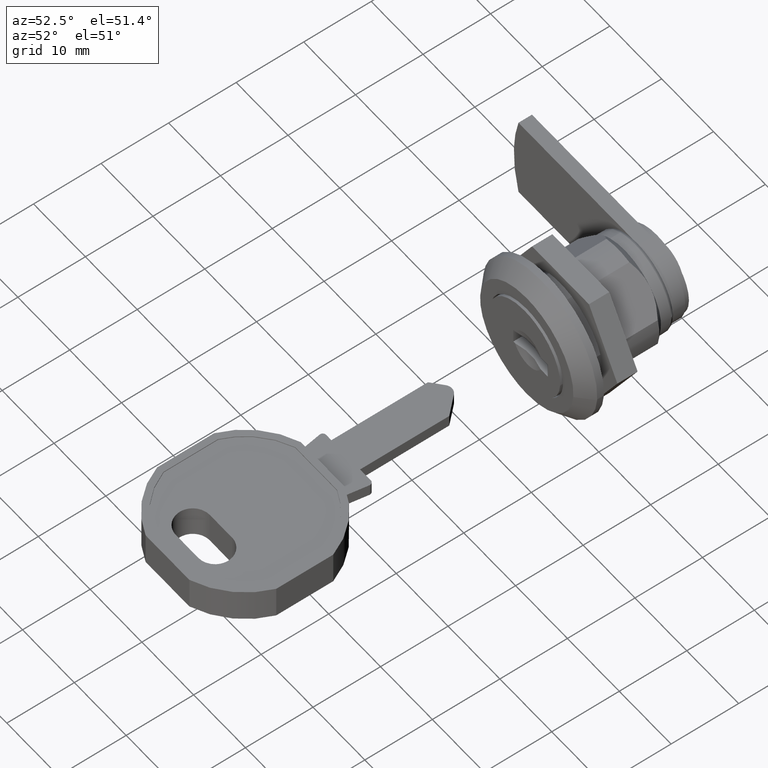
[diagram: clean part render]
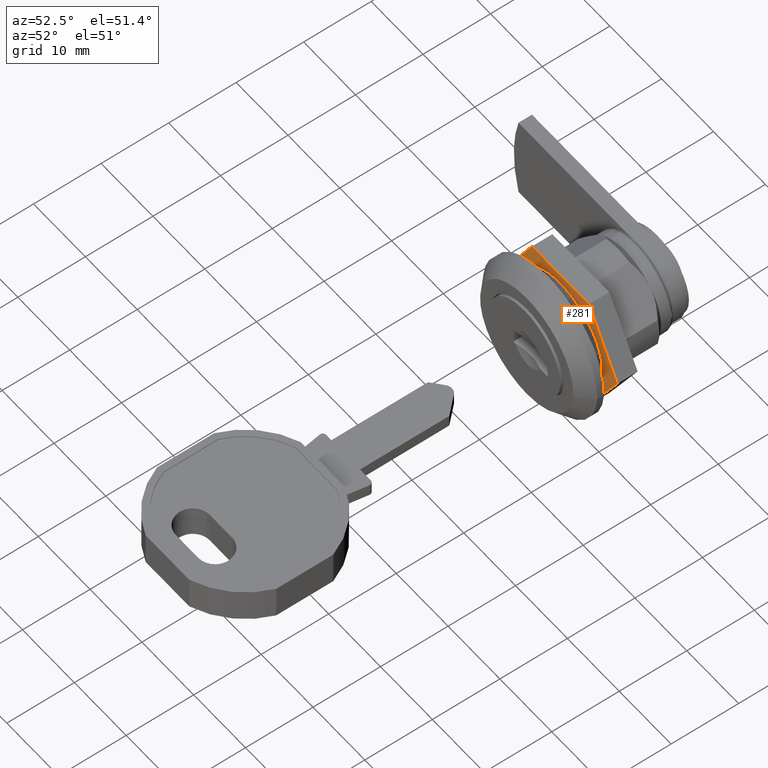
[diagram: same view with one face highlighted and labeled with its STEP entity id]
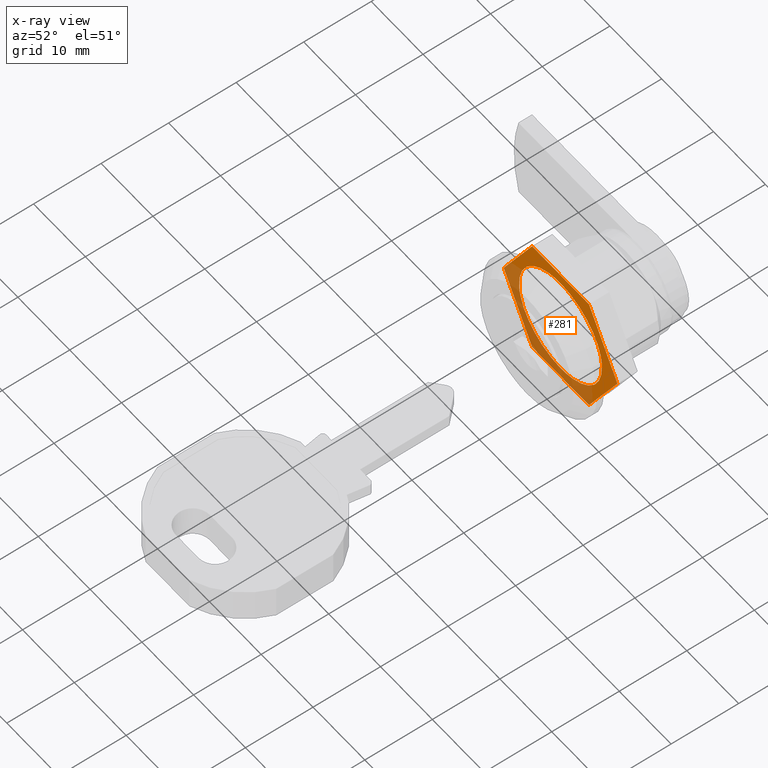
[diagram: x-ray of the same camera — body ghosted, the highlighted face saturated]
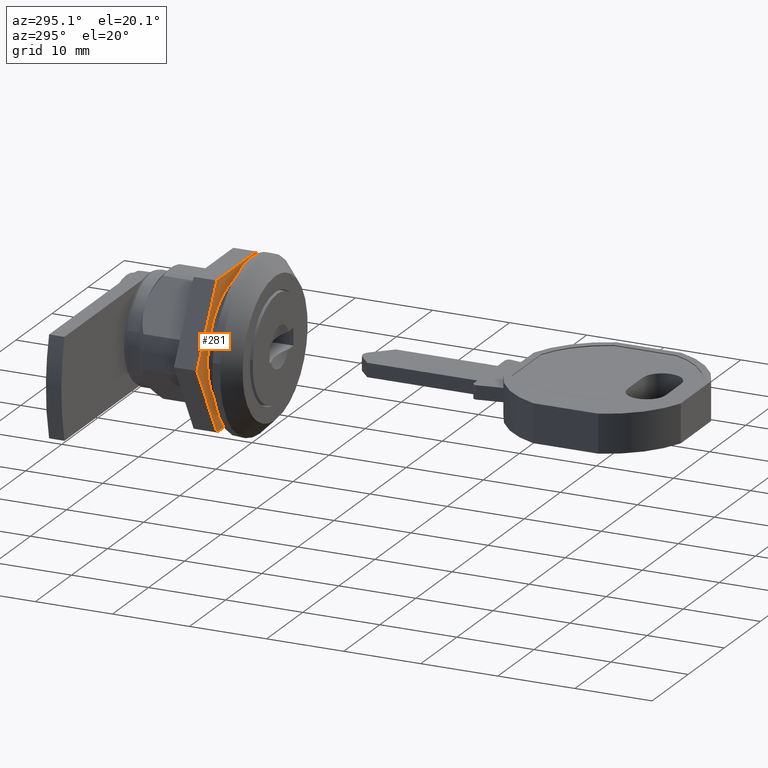
[diagram: same view with one face highlighted and labeled with its STEP entity id]
A machine part, auxiliary view. The second image highlights one B-rep face of the part: STEP entity #281.
The next image is the same camera in x-ray: the body ghosted, the highlighted face saturated — about 43% of this face is hidden behind the body in this view.
A second angle (auxiliary view) of the same face is appended — the face is thin or edge-on in the first view.
In plain terms, the highlighted face is a freeform B-spline surface patch.
Its self-contained STEP definition (entity closure, byte-faithful):
#62=CARTESIAN_POINT('',(2.000000094994905,0.0,8.000000379979579));
#63=VERTEX_POINT('',#62);
#64=CARTESIAN_POINT('',(2.000000094994905,-7.975339048668532,0.627672795695574));
#65=VERTEX_POINT('',#64);
#66=CARTESIAN_POINT('',(2.000000094994905,0.0,8.000000379979579));
#67=CARTESIAN_POINT('',(2.000000094994906,-7.395124284403627,8.000000379979579));
#68=CARTESIAN_POINT('',(2.000000094994906,-7.975339048668532,0.627672795695574));
#76=(BOUNDED_CURVE()B_SPLINE_CURVE(2,(#66,#67,#68),.UNSPECIFIED.,.F.,.U.)B_SPLINE_CURVE_WITH_KNOTS((3,3),(0.0,0.236331300630189),.UNSPECIFIED.)CURVE()GEOMETRIC_REPRESENTATION_ITEM()RATIONAL_B_SPLINE_CURVE((1.0,0.723120658608217,0.969723356166436))REPRESENTATION_ITEM(''));
#77=EDGE_CURVE('',#63,#65,#76,.T.);
#79=CARTESIAN_POINT('',(2.000000094994905,7.975339048668532,-0.627672795695576));
#80=VERTEX_POINT('',#79);
#81=CARTESIAN_POINT('',(2.000000094994906,7.975339048668532,-0.627672795695576));
#82=CARTESIAN_POINT('',(2.000000094994905,8.000000379979579,-0.314320871051035));
#83=CARTESIAN_POINT('',(2.000000094994905,8.000000379979579,0.0));
#84=CARTESIAN_POINT('',(2.000000094994906,8.000000379979579,8.000000379979579));
#85=CARTESIAN_POINT('',(2.000000094994905,0.0,8.000000379979579));
#93=(BOUNDED_CURVE()B_SPLINE_CURVE(2,(#81,#82,#83,#84,#85),.UNSPECIFIED.,.F.,.U.)B_SPLINE_CURVE_WITH_KNOTS((3,2,3),(0.736331300630189,0.750000000000000,1.0),.UNSPECIFIED.)CURVE()GEOMETRIC_REPRESENTATION_ITEM()RATIONAL_B_SPLINE_CURVE((0.969723356166436,0.983986122578331,1.0,0.707106781186547,1.0))REPRESENTATION_ITEM(''));
#94=EDGE_CURVE('',#80,#63,#93,.T.);
#161=CARTESIAN_POINT('',(2.000000094994905,0.0,-8.000000379979579));
#162=VERTEX_POINT('',#161);
#163=CARTESIAN_POINT('',(2.000000094994906,-7.975339048668532,0.627672795695574));
#164=CARTESIAN_POINT('',(2.000000094994906,-8.000000379979579,0.314320871051033));
#165=CARTESIAN_POINT('',(2.000000094994905,-8.000000379979579,0.0));
#166=CARTESIAN_POINT('',(2.000000094994906,-8.000000379979579,-8.000000379979579));
#167=CARTESIAN_POINT('',(2.000000094994905,0.0,-8.000000379979579));
#175=(BOUNDED_CURVE()B_SPLINE_CURVE(2,(#163,#164,#165,#166,#167),.UNSPECIFIED.,.F.,.U.)B_SPLINE_CURVE_WITH_KNOTS((3,2,3),(0.236331300630189,0.250000000000000,0.500000000000000),.UNSPECIFIED.)CURVE()GEOMETRIC_REPRESENTATION_ITEM()RATIONAL_B_SPLINE_CURVE((0.969723356166436,0.983986122578331,1.0,0.707106781186547,1.0))REPRESENTATION_ITEM(''));
#176=EDGE_CURVE('',#65,#162,#175,.T.);
#210=CARTESIAN_POINT('',(2.000000094994905,0.0,-8.000000379979579));
#211=CARTESIAN_POINT('',(2.000000094994905,7.395124284403576,-8.000000379979579));
#212=CARTESIAN_POINT('',(2.000000094994905,7.975339048668532,-0.627672795695576));
#220=(BOUNDED_CURVE()B_SPLINE_CURVE(2,(#210,#211,#212),.UNSPECIFIED.,.F.,.U.)B_SPLINE_CURVE_WITH_KNOTS((3,3),(0.500000000000000,0.736331300630188),.UNSPECIFIED.)CURVE()GEOMETRIC_REPRESENTATION_ITEM()RATIONAL_B_SPLINE_CURVE((1.0,0.723120658608218,0.969723356166434))REPRESENTATION_ITEM(''));
#221=EDGE_CURVE('',#162,#80,#220,.T.);
#226=CARTESIAN_POINT('',(2.000000094994905,-12.065524603010401,10.449050034879280));
#227=CARTESIAN_POINT('',(2.000000094994905,12.065524799162979,10.449050034879280));
#228=CARTESIAN_POINT('',(2.000000094994905,-12.065524603010401,-10.449049525259641));
#229=CARTESIAN_POINT('',(2.000000094994905,12.065524799162979,-10.449049525259641));
#230=B_SPLINE_SURFACE_WITH_KNOTS('',1,1,((#226,#228),(#227,#229)),.UNSPECIFIED.,.F.,.F.,.U.,(2,2),(2,2),(0.0,24.131049402173382),(0.0,20.898099560138920),.UNSPECIFIED.);
#231=CARTESIAN_POINT('',(2.000000094994905,-5.484827817816380,-9.500000451225791));
#232=VERTEX_POINT('',#231);
#233=CARTESIAN_POINT('',(2.000000094994905,-10.969655635632281,-1.733724E-012));
#234=VERTEX_POINT('',#233);
#235=CARTESIAN_POINT('',(2.000000094994905,-5.484827817816380,-9.500000451225791));
#236=CARTESIAN_POINT('',(2.000000094994905,-10.969655635632281,-1.733724E-012));
#237=QUASI_UNIFORM_CURVE('',1,(#235,#236),.UNSPECIFIED.,.F.,.U.);
#238=EDGE_CURVE('',#232,#234,#237,.T.);
#239=ORIENTED_EDGE('',*,*,#238,.T.);
#240=CARTESIAN_POINT('',(2.000000094994905,-5.484827817813990,9.500000451225201));
#241=VERTEX_POINT('',#240);
#242=CARTESIAN_POINT('',(2.000000094994905,-10.969655635632281,-1.733724E-012));
#243=CARTESIAN_POINT('',(2.000000094994905,-5.484827817813990,9.500000451225201));
#244=QUASI_UNIFORM_CURVE('',1,(#242,#243),.UNSPECIFIED.,.F.,.U.);
#245=EDGE_CURVE('',#234,#241,#244,.T.);
#246=ORIENTED_EDGE('',*,*,#245,.T.);
#247=CARTESIAN_POINT('',(2.000000094994905,5.484827817816409,9.500000451225700));
#248=VERTEX_POINT('',#247);
#249=CARTESIAN_POINT('',(2.000000094994905,-5.484827817813990,9.500000451225201));
#250=CARTESIAN_POINT('',(2.000000094994905,5.484827817816409,9.500000451225700));
#251=QUASI_UNIFORM_CURVE('',1,(#249,#250),.UNSPECIFIED.,.F.,.U.);
#252=EDGE_CURVE('',#241,#248,#251,.T.);
#253=ORIENTED_EDGE('',*,*,#252,.T.);
#254=CARTESIAN_POINT('',(2.000000094994905,10.969655635632121,2.668088E-012));
#255=VERTEX_POINT('',#254);
#256=CARTESIAN_POINT('',(2.000000094994905,5.484827817816409,9.500000451225700));
#257=CARTESIAN_POINT('',(2.000000094994905,10.969655635632121,2.668088E-012));
#258=QUASI_UNIFORM_CURVE('',1,(#256,#257),.UNSPECIFIED.,.F.,.U.);
#259=EDGE_CURVE('',#248,#255,#258,.T.);
#260=ORIENTED_EDGE('',*,*,#259,.T.);
#261=CARTESIAN_POINT('',(2.000000094994905,5.484827817814020,-9.500000451225221));
#262=VERTEX_POINT('',#261);
#263=CARTESIAN_POINT('',(2.000000094994905,10.969655635632121,2.668088E-012));
#264=CARTESIAN_POINT('',(2.000000094994905,5.484827817814020,-9.500000451225221));
#265=QUASI_UNIFORM_CURVE('',1,(#263,#264),.UNSPECIFIED.,.F.,.U.);
#266=EDGE_CURVE('',#255,#262,#265,.T.);
#267=ORIENTED_EDGE('',*,*,#266,.T.);
#268=CARTESIAN_POINT('',(2.000000094994905,5.484827817814020,-9.500000451225221));
#269=CARTESIAN_POINT('',(2.000000094994905,-5.484827817816380,-9.500000451225791));
#270=QUASI_UNIFORM_CURVE('',1,(#268,#269),.UNSPECIFIED.,.F.,.U.);
#271=EDGE_CURVE('',#262,#232,#270,.T.);
#272=ORIENTED_EDGE('',*,*,#271,.T.);
#273=EDGE_LOOP('',(#239,#246,#253,#260,#267,#272));
#274=FACE_OUTER_BOUND('',#273,.T.);
#275=ORIENTED_EDGE('',*,*,#221,.T.);
#276=ORIENTED_EDGE('',*,*,#94,.T.);
#277=ORIENTED_EDGE('',*,*,#77,.T.);
#278=ORIENTED_EDGE('',*,*,#176,.T.);
#279=EDGE_LOOP('',(#275,#276,#277,#278));
#280=FACE_BOUND('',#279,.T.);
#281=ADVANCED_FACE('',(#274,#280),#230,.T.);